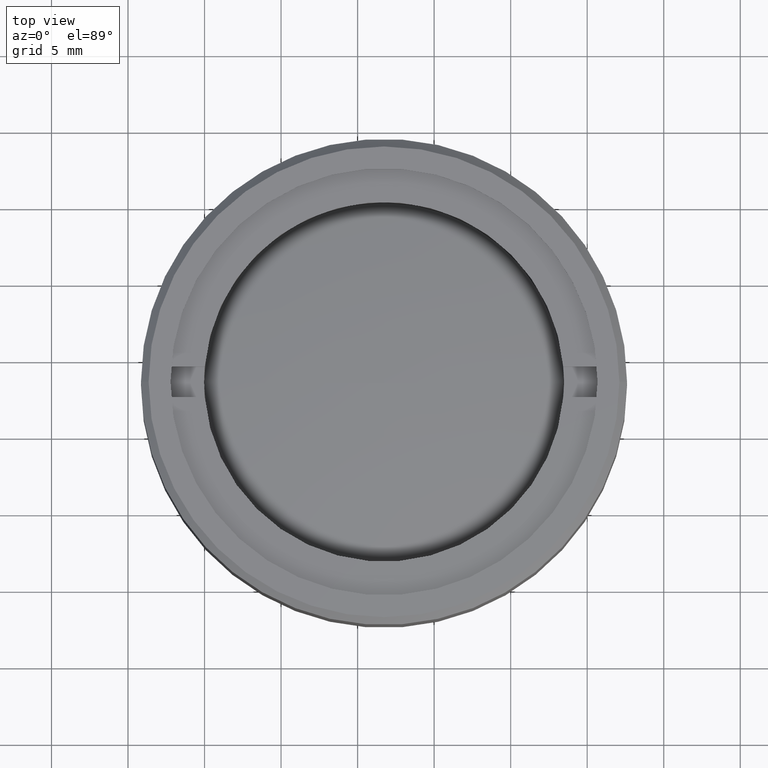
[diagram: clean part render]
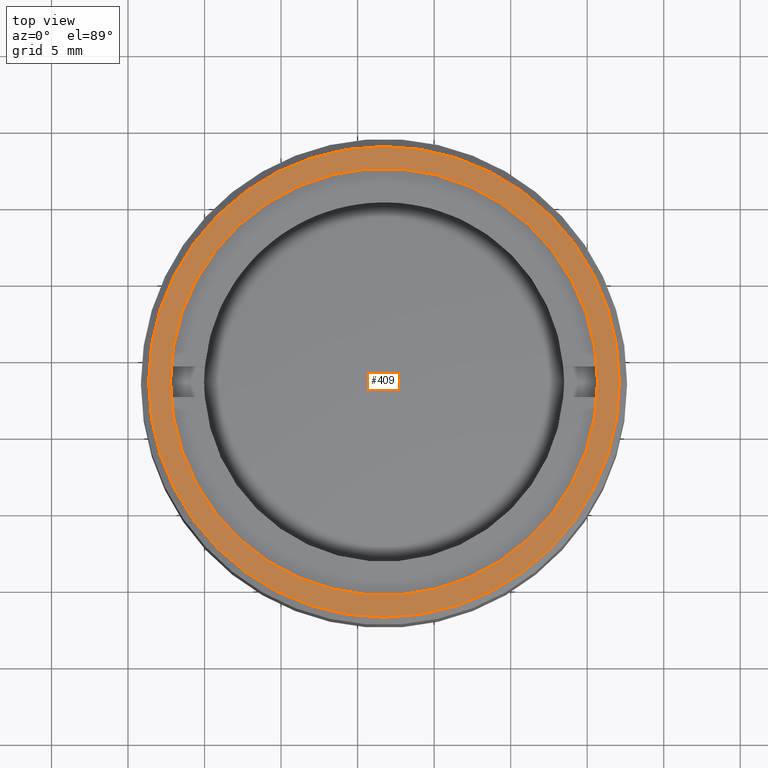
[diagram: same view with one face highlighted and labeled with its STEP entity id]
A machine part, top view. The second image highlights one B-rep face of the part: STEP entity #409.
In plain terms, the highlighted planar face has unit normal (0, 0, 1).
Its self-contained STEP definition (entity closure, byte-faithful):
#4 = ORIENTED_EDGE ( 'NONE', *, *, #1315, .T. ) ;
#46 = CIRCLE ( 'NONE', #183, 15.37800000000000367 ) ;
#55 = DIRECTION ( 'NONE',  ( 1.000000000000000000, 0.000000000000000000, 0.000000000000000000 ) ) ;
#67 = CARTESIAN_POINT ( 'NONE',  ( -13.94999999999999929, 1.708382284810557565E-15, 16.50000000000000000 ) ) ;
#87 = FACE_OUTER_BOUND ( 'NONE', #1476, .T. ) ;
#183 = AXIS2_PLACEMENT_3D ( 'NONE', #382, #1475, #907 ) ;
#204 = DIRECTION ( 'NONE',  ( 1.000000000000000000, 0.000000000000000000, -0.000000000000000000 ) ) ;
#262 = CARTESIAN_POINT ( 'NONE',  ( 13.94999999999999929, 0.000000000000000000, 16.50000000000000000 ) ) ;
#299 = EDGE_CURVE ( 'NONE', #1588, #1236, #1352, .T. ) ;
#382 = CARTESIAN_POINT ( 'NONE',  ( 0.000000000000000000, 0.000000000000000000, 16.50000000000000000 ) ) ;
#409 = ADVANCED_FACE ( 'NONE', ( #87, #493 ), #1421, .T. ) ;
#415 = ORIENTED_EDGE ( 'NONE', *, *, #299, .F. ) ;
#416 = CARTESIAN_POINT ( 'NONE',  ( -15.37800000000000367, 0.000000000000000000, 16.50000000000000000 ) ) ;
#493 = FACE_BOUND ( 'NONE', #908, .T. ) ;
#514 = DIRECTION ( 'NONE',  ( 0.000000000000000000, 0.000000000000000000, 1.000000000000000000 ) ) ;
#610 = VERTEX_POINT ( 'NONE', #416 ) ;
#683 = CARTESIAN_POINT ( 'NONE',  ( 15.37800000000000367, 1.913878017707484038E-15, 16.50000000000000000 ) ) ;
#705 = CARTESIAN_POINT ( 'NONE',  ( 0.000000000000000000, 0.000000000000000000, 16.50000000000000000 ) ) ;
#899 = CARTESIAN_POINT ( 'NONE',  ( 0.000000000000000000, 0.000000000000000000, 16.50000000000000000 ) ) ;
#907 = DIRECTION ( 'NONE',  ( 1.000000000000000000, 0.000000000000000000, 0.000000000000000000 ) ) ;
#908 = EDGE_LOOP ( 'NONE', ( #1660, #415 ) ) ;
#920 = CIRCLE ( 'NONE', #1458, 15.37800000000000367 ) ;
#1004 = DIRECTION ( 'NONE',  ( 1.000000000000000000, 0.000000000000000000, 0.000000000000000000 ) ) ;
#1054 = CARTESIAN_POINT ( 'NONE',  ( 0.000000000000000000, 0.000000000000000000, 16.50000000000000000 ) ) ;
#1131 = DIRECTION ( 'NONE',  ( 0.000000000000000000, 0.000000000000000000, 1.000000000000000000 ) ) ;
#1178 = CIRCLE ( 'NONE', #1618, 13.94999999999999929 ) ;
#1211 = DIRECTION ( 'NONE',  ( 0.000000000000000000, 0.000000000000000000, 1.000000000000000000 ) ) ;
#1212 = ORIENTED_EDGE ( 'NONE', *, *, #1366, .T. ) ;
#1236 = VERTEX_POINT ( 'NONE', #262 ) ;
#1244 = DIRECTION ( 'NONE',  ( 0.000000000000000000, 0.000000000000000000, 1.000000000000000000 ) ) ;
#1315 = EDGE_CURVE ( 'NONE', #1611, #610, #920, .T. ) ;
#1352 = CIRCLE ( 'NONE', #1567, 13.94999999999999929 ) ;
#1366 = EDGE_CURVE ( 'NONE', #610, #1611, #46, .T. ) ;
#1421 = PLANE ( 'NONE',  #1539 ) ;
#1458 = AXIS2_PLACEMENT_3D ( 'NONE', #899, #1211, #1577 ) ;
#1475 = DIRECTION ( 'NONE',  ( 0.000000000000000000, 0.000000000000000000, 1.000000000000000000 ) ) ;
#1476 = EDGE_LOOP ( 'NONE', ( #1212, #4 ) ) ;
#1539 = AXIS2_PLACEMENT_3D ( 'NONE', #1547, #1131, #204 ) ;
#1547 = CARTESIAN_POINT ( 'NONE',  ( 0.000000000000000000, 0.000000000000000000, 16.50000000000000000 ) ) ;
#1567 = AXIS2_PLACEMENT_3D ( 'NONE', #705, #1244, #55 ) ;
#1577 = DIRECTION ( 'NONE',  ( 1.000000000000000000, 0.000000000000000000, 0.000000000000000000 ) ) ;
#1588 = VERTEX_POINT ( 'NONE', #67 ) ;
#1611 = VERTEX_POINT ( 'NONE', #683 ) ;
#1618 = AXIS2_PLACEMENT_3D ( 'NONE', #1054, #514, #1004 ) ;
#1632 = EDGE_CURVE ( 'NONE', #1236, #1588, #1178, .T. ) ;
#1660 = ORIENTED_EDGE ( 'NONE', *, *, #1632, .F. ) ;